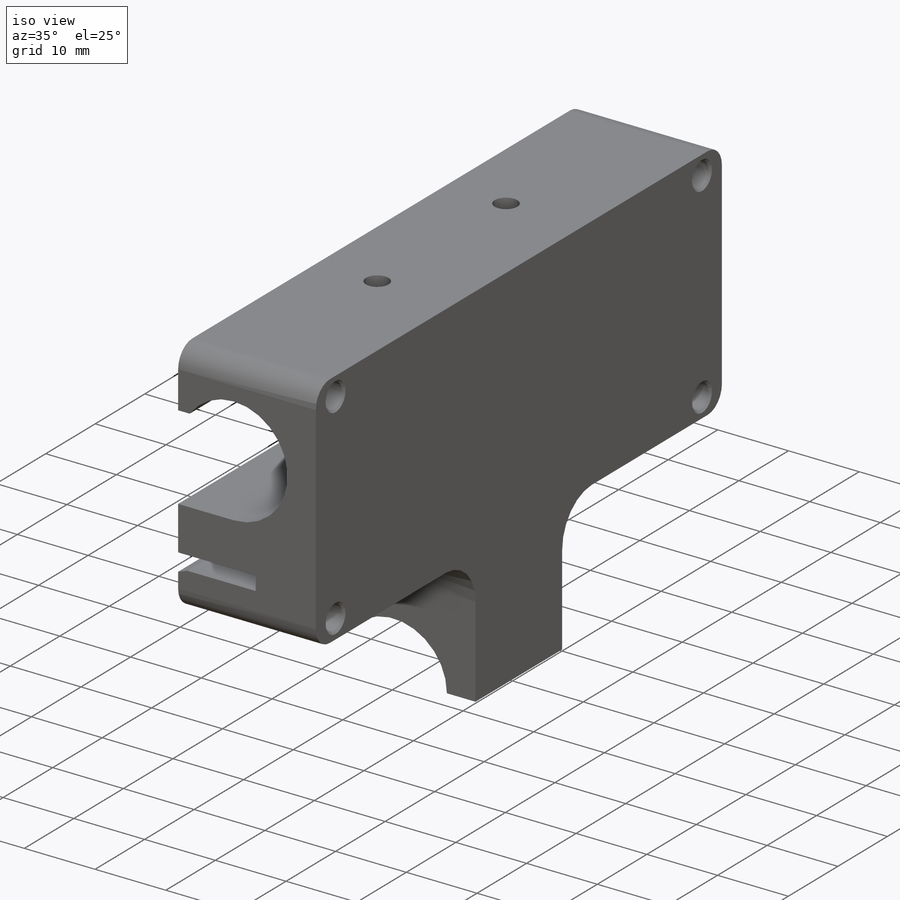
[diagram: iso view]
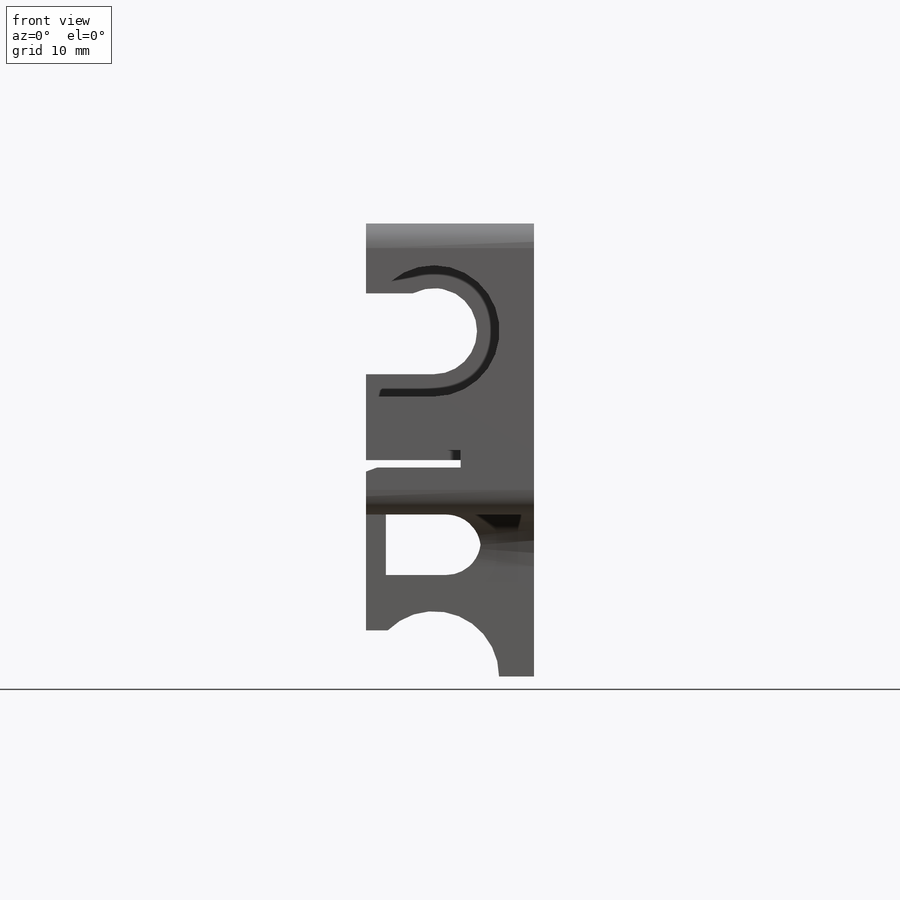
[diagram: front view]
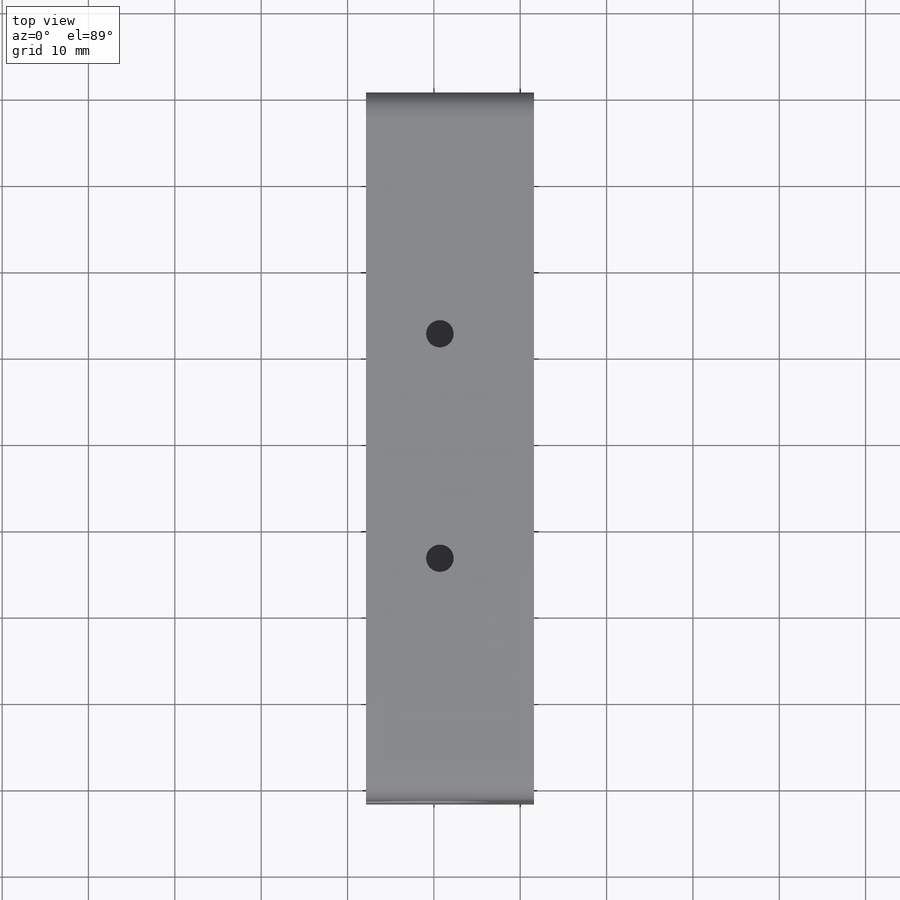
[diagram: top view]
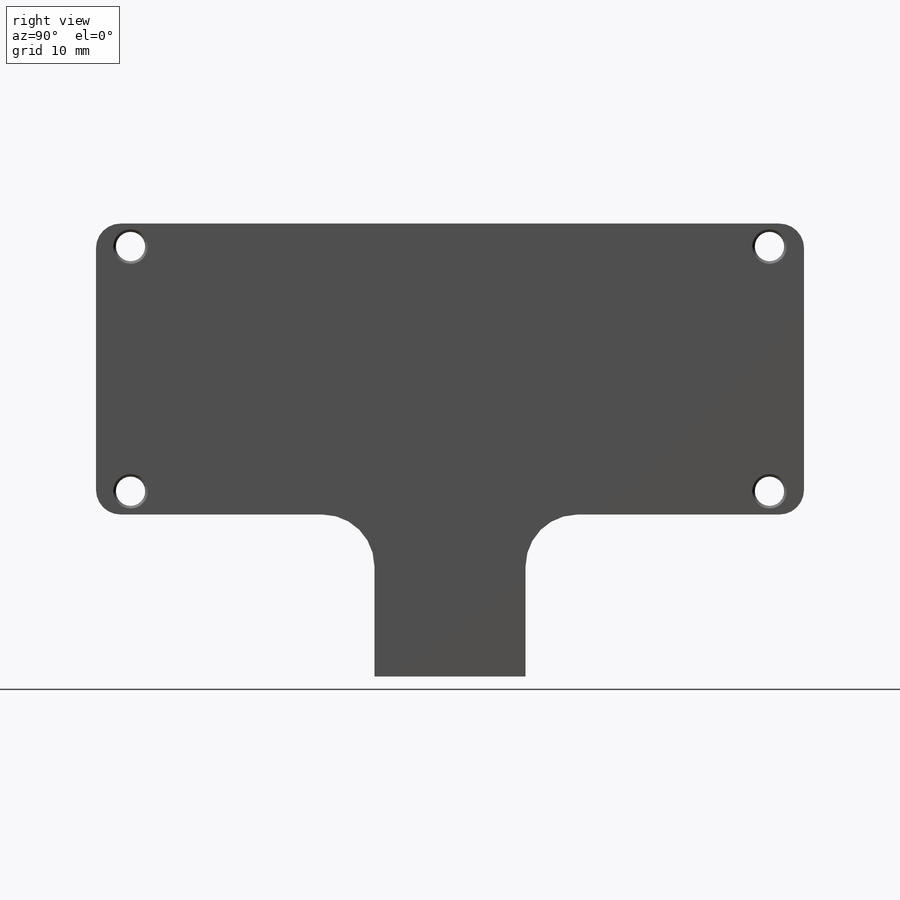
[diagram: right view]
SOLIDWORKS PART (.sldprt)
format: sldprt  version: not decoded by parser v0  size: 586,240 bytes
history: native  units: mm
features: sketch x15, cut_extrude x9, plane x6, extrude x4, mirror x4, fillet x4, chamfer x2, material x1 (+12 scaffold rows collapsed)
feature tree (57):
  scaffold x12  (default folders/planes/origin — collapsed)
  material  "Material <not specified>"
  sketch  "Sketch1"  dims[c1.D1=15.2mm c1.D3=15.1mm c1.D2=40.0mm c1.D4=135.0deg c2.D4=4.0mm c2.D5=2.0mm c2.D6=4.0mm c2.D7=16.0mm c3.D7=125.0deg c3.D4=62.0mm c3.D6=135.0deg]
  extrude  "Boss-Extrude1"  Depth=82mm
  plane  "Plane1"  Offset=25mm
  plane  "Plane2"  Offset=25mm
  plane  "Plane3"
  plane  "Plane4"  Offset=12.5mm
  plane  "Plane5"  Offset=12.5mm
  sketch  "Sketch2"  dims[c1.D1=~3.934336mm c2.D1=45.0deg]
  extrude  "Boss-Extrude2"  Depth=17mm
  sketch  "Sketch4"  dims[c1.D1=20.0mm c1.D2=2.0mm c1.D3=1.15mm c1.D4=6.2mm c1.D5=27.33mm c1.D6=27.33mm c2.D1=0.0mm]
  cut_extrude  "Cut-Extrude1"  Depth=10.7mm
  sketch  "Sketch6"  dims[c1.D1=3.4mm c1.D2=3.4mm c1.D3=3.2mm c1.D4=3.2mm c1.D5=3.2mm c1.D6=3.2mm c2.D3=2.66mm c2.D4=4.0mm c2.D5=31.0mm c2.D6=4.0mm]
  cut_extrude  "Cut-Extrude2"  [1 undecoded]
  mirror  "Mirror1"
  sketch  "Sketch7"  dims[c1.D3=3.2mm c1.D4=3.2mm c1.D6=3.2mm c1.D2=3.2mm c1.D7=3.2mm c2.D2=3.0mm c2.D3=4.0mm c2.D4=2.7mm c2.D5=4.0mm c2.D6=2.7mm c2.D7=2.7mm c3.D3=7.0mm c3.D1=0.0mm c3.D2=0.0mm]
  cut_extrude  "Cut-Extrude3"  Depth=13mm
  sketch  "Sketch9"  dims[D1=12.0mm D2=12.0mm]
  cut_extrude  "Cut-Extrude4"  [1 undecoded]
  fillet  "Fillet1"  Radius=4mm
  sketch  "Sketch10"  dims[D1=20.0mm D2=5.0mm]
  sketch  "Sketch11"  dims[D2=3.2mm D3=4.0mm D1=0.0mm]
  cut_extrude  "Cut-Extrude5"  [1 undecoded]
  mirror  "Mirror2"
  sketch  "Sketch12"  dims[D1=6.4mm]
  cut_extrude  "Cut-Extrude6"  Depth=5mm
  mirror  "Mirror3"
  plane  "Plane6"
  sketch  "Sketch14"  dims[D2=3.25mm D1=0.0mm]
  cut_extrude  "Cut-Extrude7"  [1 undecoded]
  fillet  "Fillet4"  Radius=6mm
  mirror  "Mirror4"
  sketch  "Sketch15"
  cut_extrude  "Cut-Extrude8"  [1 undecoded]
  sketch  "Sketch16"  dims[D1=45.0deg]
  sketch  "Sketch17"
  extrude  "Boss-Extrude3"  Depth=2mm
  sketch  "Sketch19"
  cut_extrude  "Cut-Extrude9"  [1 undecoded]
  fillet  "Fillet5"  Radius=2.85mm
  fillet  "Fillet6"  Radius=2.85mm
  sketch  "Sketch23"
  extrude  "Boss-Extrude5"  Depth=0.3mm
  chamfer  "Chamfer1"  Distance=1.3mm Angle=20deg
  chamfer  "Chamfer2"  Distance=0.3mm Angle=45deg
decode coverage: 24 of 38 modeling features carry decoded parameters
note: ~ marks probable driven/reference dimensions
note: 6 parameter values undecoded
summary: no parameter record found for 6 features
note: suppression state not decoded; provenance and decode notes live in map.json
